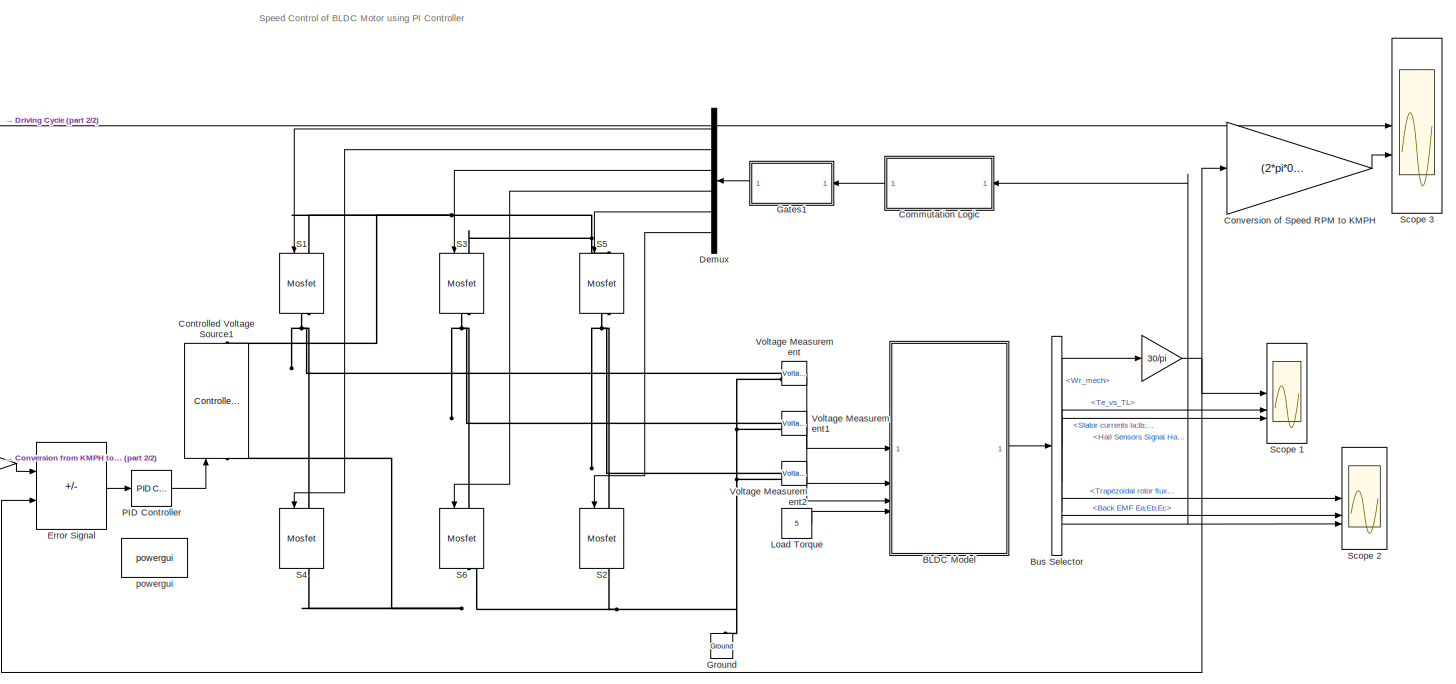
[diagram: root canvas - part 1/2, most of the canvas]
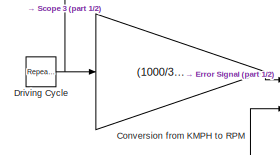
[diagram: root canvas - part 2/2, bottom left region]
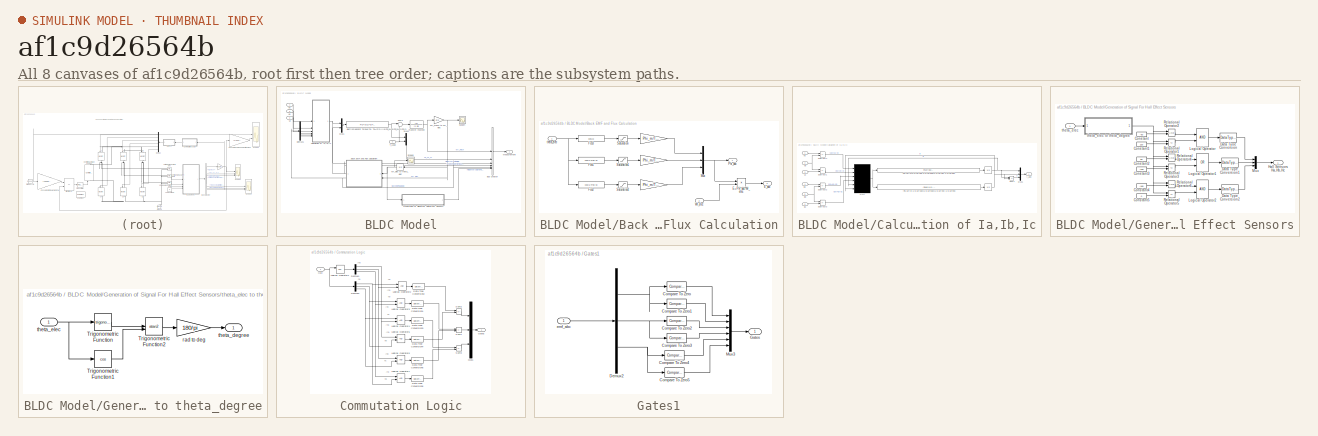
[diagram: thumbnail index - all 8 canvases of the model, root first then tree order]
MODEL slx_af1c9d26564b
KIND model
CONFIG AbsTol = auto
CONFIG EnableMultiTasking = off
CONFIG FixedStep = auto
CONFIG MaxStep = auto
CONFIG MinStep = auto
CONFIG RelTol = 1e-3
CONFIG SampleTimeConstraint = Unconstrained
CONFIG SolverName = VariableStepAuto
CONFIG StartTime = 0.0
CONFIG StopTime = 14
BLOCK [Gain]  
  Gain = 30/pi
  OutDataTypeStr = Inherit: Same as input
  ParamDataTypeStr = Inherit: Same as input
  SaturateOnIntegerOverflow = on
BLOCK [SubSystem] BLDC Model
BLOCK [SubSystem] BLDC Model/Back EMF and Flux Calculation
  NameLocation = top
BLOCK [Gain] BLDC Model/Back EMF and Flux Calculation/ 
  Gain = Phi_m/Trap
BLOCK [Product] BLDC Model/Back EMF and Flux Calculation/E=Phi_abc*Wr_elec
BLOCK [Outport] BLDC Model/Back EMF and Flux Calculation/E_abc
  Port = 2
BLOCK [Fcn] BLDC Model/Back EMF and Flux Calculation/Fcn1
  Expr = cos(u-2*pi/3)
BLOCK [Fcn] BLDC Model/Back EMF and Flux Calculation/Fcn2
  Expr = cos(u-4*pi/3)
BLOCK [Fcn] BLDC Model/Back EMF and Flux Calculation/Fcn3
  Expr = cos(u)
BLOCK [Mux] BLDC Model/Back EMF and Flux Calculation/Mux
  DisplayOption = bar
  Inputs = 3
BLOCK [Outport] BLDC Model/Back EMF and Flux Calculation/Phi_abc
BLOCK [Saturate] BLDC Model/Back EMF and Flux Calculation/Saturation
  LowerLimit = -Trap
  UpperLimit = Trap
BLOCK [Saturate] BLDC Model/Back EMF and Flux Calculation/Saturation1
  LowerLimit = -Trap
  UpperLimit = Trap
BLOCK [Saturate] BLDC Model/Back EMF and Flux Calculation/Saturation2
  LowerLimit = -Trap
  UpperLimit = Trap
BLOCK [Inport] BLDC Model/Back EMF and Flux Calculation/Wr_elec
  Port = 2
BLOCK [Inport] BLDC Model/Back EMF and Flux Calculation/theta_elec
BLOCK [BusCreator] BLDC Model/Bus Creator
  DisplayOption = bar
  InheritFromInputs = on
  Inputs = 6
BLOCK [SubSystem] BLDC Model/Calculation of Ia,Ib,Ic
BLOCK [Integrator] BLDC Model/Calculation of Ia,Ib,Ic/ 
BLOCK [Fcn] BLDC Model/Calculation of Ia,Ib,Ic/-Rs//Lls*Ia+2//3//Lls*Vab-2//3//Lls*eab+1//3//Lls*Vbc-1//3//Lls*ebc
  Expr = -Rs/Lls*u(5)+2/3/Lls*u(1)-2/3/Lls*u(3)+1/3/Lls*u(2)-1/3/Lls*u(4)
BLOCK [Fcn] BLDC Model/Calculation of Ia,Ib,Ic/-Rs//Lls*Ib-1//3//Lls*Vab+1//3//Lls*eab+1//3//Lls*Vbc-1//3//Lls*ebc
  Expr = -Rs/Lls*u(6)-1/3/Lls*u(1)+1/3/Lls*u(3)+1/3/Lls*u(2)-1/3/Lls*u(4)
BLOCK [Inport] BLDC Model/Calculation of Ia,Ib,Ic/Ea
  Port = 4
BLOCK [Inport] BLDC Model/Calculation of Ia,Ib,Ic/Eb
  Port = 5
BLOCK [Inport] BLDC Model/Calculation of Ia,Ib,Ic/Ec
  Port = 6
BLOCK [Outport] BLDC Model/Calculation of Ia,Ib,Ic/I_abc
BLOCK [Mux] BLDC Model/Calculation of Ia,Ib,Ic/Mux1
  DisplayOption = bar
  Inputs = 3
BLOCK [Mux] BLDC Model/Calculation of Ia,Ib,Ic/Mux2
  DisplayOption = signals
  Inputs = 6
BLOCK [Sum] BLDC Model/Calculation of Ia,Ib,Ic/Subtract1
  IconShape = rectangular
  Inputs = +-
BLOCK [Sum] BLDC Model/Calculation of Ia,Ib,Ic/Subtract2
  IconShape = rectangular
  Inputs = +-
BLOCK [Sum] BLDC Model/Calculation of Ia,Ib,Ic/Subtract3
  IconShape = rectangular
  Inputs = +-
BLOCK [Sum] BLDC Model/Calculation of Ia,Ib,Ic/Subtract4
  IconShape = rectangular
  Inputs = +-
BLOCK [Sum] BLDC Model/Calculation of Ia,Ib,Ic/Sum1
  IconShape = rectangular
  Inputs = --
  SaturateOnIntegerOverflow = on
BLOCK [Inport] BLDC Model/Calculation of Ia,Ib,Ic/Va
BLOCK [Inport] BLDC Model/Calculation of Ia,Ib,Ic/Vb
  Port = 2
BLOCK [Inport] BLDC Model/Calculation of Ia,Ib,Ic/Vc
  Port = 3
BLOCK [Demux] BLDC Model/Demux1
  Outputs = 3
BLOCK [Fcn] BLDC Model/Electromagnetic Torque(Te) Te=(P//2)*(Ia*Phi_a+Ib*Phi_b+Ic*Phi_c)
  Expr = P/2*(u[1]*u[4]+u[2]*u[5]+u[3]*u[6])
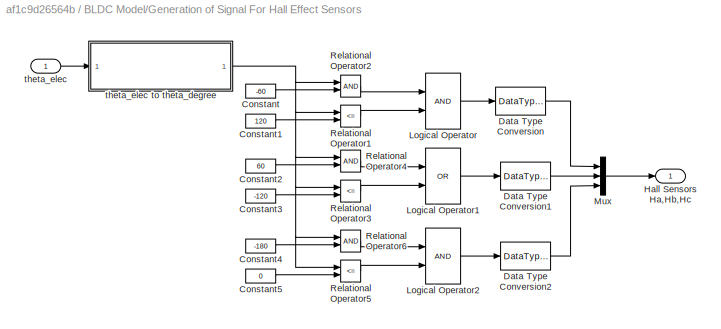
BLOCK [SubSystem] BLDC Model/Generation of Signal For Hall Effect Sensors
BLOCK [Constant] BLDC Model/Generation of Signal For Hall Effect Sensors/Constant
  Value = -60
BLOCK [Constant] BLDC Model/Generation of Signal For Hall Effect Sensors/Constant1
  Value = 120
BLOCK [Constant] BLDC Model/Generation of Signal For Hall Effect Sensors/Constant2
  Value = 60
BLOCK [Constant] BLDC Model/Generation of Signal For Hall Effect Sensors/Constant3
  Value = -120
BLOCK [Constant] BLDC Model/Generation of Signal For Hall Effect Sensors/Constant4
  Value = -180
BLOCK [Constant] BLDC Model/Generation of Signal For Hall Effect Sensors/Constant5
  Value = 0
BLOCK [DataTypeConversion] BLDC Model/Generation of Signal For Hall Effect Sensors/Data Type Conversion
  NameLocation = top
  OutDataTypeStr = double
BLOCK [DataTypeConversion] BLDC Model/Generation of Signal For Hall Effect Sensors/Data Type Conversion1
  NameLocation = top
  OutDataTypeStr = double
BLOCK [DataTypeConversion] BLDC Model/Generation of Signal For Hall Effect Sensors/Data Type Conversion2
  NameLocation = top
  OutDataTypeStr = double
BLOCK [Outport] BLDC Model/Generation of Signal For Hall Effect Sensors/Hall Sensors Ha,Hb,Hc
BLOCK [Logic] BLDC Model/Generation of Signal For Hall Effect Sensors/Logical Operator
  AllPortsSameDT = off
  OutDataTypeStr = boolean
BLOCK [Logic] BLDC Model/Generation of Signal For Hall Effect Sensors/Logical Operator1
  AllPortsSameDT = off
  Operator = OR
  OutDataTypeStr = boolean
BLOCK [Logic] BLDC Model/Generation of Signal For Hall Effect Sensors/Logical Operator2
  AllPortsSameDT = off
  OutDataTypeStr = boolean
BLOCK [Mux] BLDC Model/Generation of Signal For Hall Effect Sensors/Mux
  DisplayOption = bar
  Inputs = 3
BLOCK [RelationalOperator] BLDC Model/Generation of Signal For Hall Effect Sensors/Relational Operator1
  Operator = <=
BLOCK [RelationalOperator] BLDC Model/Generation of Signal For Hall Effect Sensors/Relational Operator2
BLOCK [RelationalOperator] BLDC Model/Generation of Signal For Hall Effect Sensors/Relational Operator3
  Operator = <=
BLOCK [RelationalOperator] BLDC Model/Generation of Signal For Hall Effect Sensors/Relational Operator4
BLOCK [RelationalOperator] BLDC Model/Generation of Signal For Hall Effect Sensors/Relational Operator5
  Operator = <=
BLOCK [RelationalOperator] BLDC Model/Generation of Signal For Hall Effect Sensors/Relational Operator6
BLOCK [Inport] BLDC Model/Generation of Signal For Hall Effect Sensors/theta_elec
  NameLocation = top
BLOCK [SubSystem] BLDC Model/Generation of Signal For Hall Effect Sensors/theta_elec to theta_degree
BLOCK [Trigonometry] BLDC Model/Generation of Signal For Hall Effect Sensors/theta_elec to theta_degree/Trigonometric Function
BLOCK [Trigonometry] BLDC Model/Generation of Signal For Hall Effect Sensors/theta_elec to theta_degree/Trigonometric Function1
  Operator = cos
BLOCK [Trigonometry] BLDC Model/Generation of Signal For Hall Effect Sensors/theta_elec to theta_degree/Trigonometric Function2
  Operator = atan2
BLOCK [Gain] BLDC Model/Generation of Signal For Hall Effect Sensors/theta_elec to theta_degree/rad to deg
  Gain = 180/pi
  OutDataTypeStr = Inherit: Same as input
  ParamDataTypeStr = Inherit: Same as input
  SaturateOnIntegerOverflow = on
BLOCK [Outport] BLDC Model/Generation of Signal For Hall Effect Sensors/theta_elec to theta_degree/theta_degree
BLOCK [Inport] BLDC Model/Generation of Signal For Hall Effect Sensors/theta_elec to theta_degree/theta_elec
BLOCK [Outport] BLDC Model/Measurement
BLOCK [Mux] BLDC Model/Mux1
  DisplayOption = bar
  Inputs = 2
BLOCK [Mux] BLDC Model/Mux2
  DisplayOption = bar
  Inputs = 2
BLOCK [Scope] BLDC Model/Scope4
  Floating = off
  NumInputPorts = 1
  ScopeSpecificationString = C++SS(StrPVP('Location','[692, 56, 1359, 759]'),StrPVP('Open','off'),StrPVP('ZoomMode','yonly'),MxPVP('AxesTitles',54,'struct(''axes1'',''%<SignalLabel>'')'),MxPVP('ScopeGraphics',57,'struct(''FigureColor'',''[0.5 0.5 0.5]'',''AxesColor'',''[0 0 0]'',''AxesTickColor'',''[1 1 1]'',''LineColors'',''[1 1 0;1 0 1;0 1 1;1 0 0;0 1 0;0 0 1]'',''LineStyles'',''-|-|-|-|-|-'',''LineWidths'',''[0.5 0.5 0.5 0...<+364ch>
BLOCK [Scope] BLDC Model/Scope5
  Floating = off
  NumInputPorts = 1
  ScopeSpecificationString = Simulink.scopes.TimeScopeBlockCfg('CurrentConfiguration', extmgr.ConfigurationSet(extmgr.Configuration('Core','General UI',true),extmgr.Configuration('Core','Source UI',true),extmgr.Configuration('Sources','WiredSimulink',true,'DataLoggingVariableName','ScopeData6','DataLoggingSaveFormat','StructureWithTime','DataLoggingDecimation','1','DataLoggingDecimateData',true),extmgr.Configuration('Visuals'...<+1751ch>
BLOCK [Sum] BLDC Model/Sum2
  Inputs = |+-
BLOCK [Inport] BLDC Model/T_Load
  Port = 4
BLOCK [TransferFcn] BLDC Model/Transfer Function
  Denominator = [J B]
BLOCK [Inport] BLDC Model/Va
BLOCK [Inport] BLDC Model/Vb
  Port = 2
BLOCK [Inport] BLDC Model/Vc
  Port = 3
BLOCK [Integrator] BLDC Model/Wr_elec to theta_elec
BLOCK [Gain] BLDC Model/Wr_mech to Wr_elec
  Gain = P/2
BLOCK [BusSelector] Bus Selector
  OutputSignals = Wr_mech,Te_vs_TL,Stator currents\nIa;Ib;Ic,Trapezoidal rotor fluxes\nPhi_a;Phi_b;Phi_c,Back EMF\nEa;Eb;Ec,Hall Sensors Signal\nHa;Hb;Hc
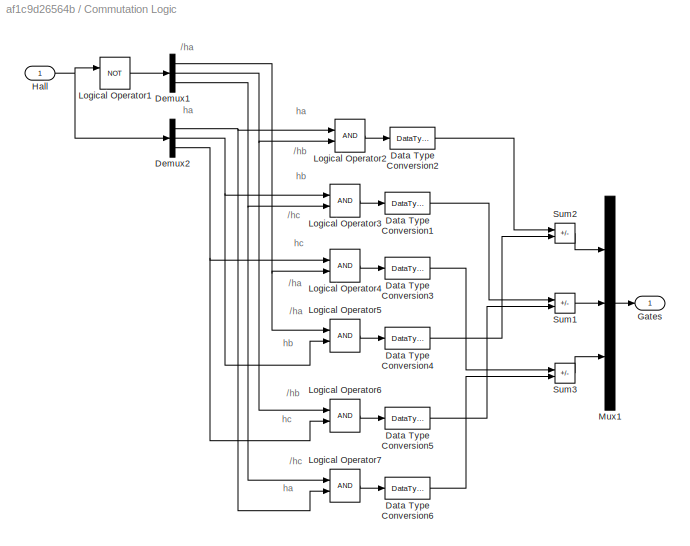
BLOCK [SubSystem] Commutation Logic
BLOCK [DataTypeConversion] Commutation Logic/Data Type Conversion1
  RndMeth = Floor
  SaturateOnIntegerOverflow = off
BLOCK [DataTypeConversion] Commutation Logic/Data Type Conversion2
  RndMeth = Floor
  SaturateOnIntegerOverflow = off
BLOCK [DataTypeConversion] Commutation Logic/Data Type Conversion3
  RndMeth = Floor
  SaturateOnIntegerOverflow = off
BLOCK [DataTypeConversion] Commutation Logic/Data Type Conversion4
  RndMeth = Floor
  SaturateOnIntegerOverflow = off
BLOCK [DataTypeConversion] Commutation Logic/Data Type Conversion5
  RndMeth = Floor
  SaturateOnIntegerOverflow = off
BLOCK [DataTypeConversion] Commutation Logic/Data Type Conversion6
  RndMeth = Floor
  SaturateOnIntegerOverflow = off
BLOCK [Demux] Commutation Logic/Demux1
  Outputs = 3
BLOCK [Demux] Commutation Logic/Demux2
  Outputs = 3
BLOCK [Outport] Commutation Logic/Gates
BLOCK [Inport] Commutation Logic/Hall 
BLOCK [Logic] Commutation Logic/Logical Operator1
  AllPortsSameDT = off
  Operator = NOT
  OutDataTypeStr = boolean
BLOCK [Logic] Commutation Logic/Logical Operator2
  AllPortsSameDT = off
  OutDataTypeStr = boolean
BLOCK [Logic] Commutation Logic/Logical Operator3
  AllPortsSameDT = off
  OutDataTypeStr = boolean
BLOCK [Logic] Commutation Logic/Logical Operator4
  AllPortsSameDT = off
  OutDataTypeStr = boolean
BLOCK [Logic] Commutation Logic/Logical Operator5
  AllPortsSameDT = off
  OutDataTypeStr = boolean
BLOCK [Logic] Commutation Logic/Logical Operator6
  AllPortsSameDT = off
  OutDataTypeStr = boolean
BLOCK [Logic] Commutation Logic/Logical Operator7
  AllPortsSameDT = off
  OutDataTypeStr = boolean
BLOCK [Mux] Commutation Logic/Mux1
  DisplayOption = bar
  Inputs = 3
BLOCK [Sum] Commutation Logic/Sum1
  IconShape = rectangular
  Inputs = +-
  OutDataTypeStr = double
BLOCK [Sum] Commutation Logic/Sum2
  IconShape = rectangular
  Inputs = +-
  OutDataTypeStr = double
BLOCK [Sum] Commutation Logic/Sum3
  IconShape = rectangular
  Inputs = +-
  OutDataTypeStr = double
BLOCK [Reference] Controlled Voltage Source1  REF=spsControlledVoltageSourceLib/Controlled Voltage Source
  LibrarySourceBlock = sps_lib/Sources/Controlled Voltage Source
  NameLocation = right
  SourceBlock = spsControlledVoltageSourceLib/Controlled Voltage Source
  SourceType = Controlled Voltage Source
BLOCK [Gain] Conversion from KMPH to RPM 
  Gain = (1000/3600)*60/(2*pi*0.3)
BLOCK [Gain] Conversion of Speed RPM to KMPH
  Gain = (2*pi*0.3*3600)/(60*1000)
  OutDataTypeStr = Inherit: Same as input
  ParamDataTypeStr = Inherit: Same as input
  SaturateOnIntegerOverflow = on
BLOCK [Demux] Demux
  NameLocation = top
  Outputs = 6
BLOCK [Reference] Driving Cycle  REF=simulink/Sources/Repeating
Sequence
  SourceBlock = simulink/Sources/Repeating\nSequence
  SourceType = Repeating table
BLOCK [Sum] Error Signal
  IconShape = rectangular
  Inputs = +-
BLOCK [SubSystem] Gates1
  NameLocation = top
BLOCK [Reference] Gates1/Compare To Zero  REF=simulink/Logic and Bit
Operations/Compare
To Zero
  SourceBlock = simulink/Logic and Bit\nOperations/Compare\nTo Zero
  SourceType = Compare To Zero
BLOCK [Reference] Gates1/Compare To Zero1  REF=simulink/Logic and Bit
Operations/Compare
To Zero
  SourceBlock = simulink/Logic and Bit\nOperations/Compare\nTo Zero
  SourceType = Compare To Zero
BLOCK [Reference] Gates1/Compare To Zero2  REF=simulink/Logic and Bit
Operations/Compare
To Zero
  SourceBlock = simulink/Logic and Bit\nOperations/Compare\nTo Zero
  SourceType = Compare To Zero
BLOCK [Reference] Gates1/Compare To Zero3  REF=simulink/Logic and Bit
Operations/Compare
To Zero
  SourceBlock = simulink/Logic and Bit\nOperations/Compare\nTo Zero
  SourceType = Compare To Zero
BLOCK [Reference] Gates1/Compare To Zero4  REF=simulink/Logic and Bit
Operations/Compare
To Zero
  SourceBlock = simulink/Logic and Bit\nOperations/Compare\nTo Zero
  SourceType = Compare To Zero
BLOCK [Reference] Gates1/Compare To Zero5  REF=simulink/Logic and Bit
Operations/Compare
To Zero
  SourceBlock = simulink/Logic and Bit\nOperations/Compare\nTo Zero
  SourceType = Compare To Zero
BLOCK [Demux] Gates1/Demux2
  Outputs = 3
BLOCK [Outport] Gates1/Gates
BLOCK [Mux] Gates1/Mux3
  DisplayOption = bar
  Inputs = 6
BLOCK [Inport] Gates1/emf_abc 
BLOCK [Reference] Ground  REF=spsGroundLib/Ground
  LibrarySourceBlock = sps_lib/Utilities/Ground
  NameLocation = right
  SourceBlock = spsGroundLib/Ground
  SourceType = Ground
BLOCK [Constant] Load Torque
  Value = 5
BLOCK [Reference] PID Controller  REF=slpidlib/PID Controller
  SourceBlock = slpidlib/PID Controller
  SourceType = PID 1dof
BLOCK [Reference] S1  REF=spsMosfetLib/Mosfet
  LibrarySourceBlock = sps_lib/Power Electronics/Mosfet
  NameLocation = left
  SourceBlock = spsMosfetLib/Mosfet
  SourceType = Mosfet
BLOCK [Reference] S2  REF=spsMosfetLib/Mosfet
  LibrarySourceBlock = sps_lib/Power Electronics/Mosfet
  NameLocation = left
  SourceBlock = spsMosfetLib/Mosfet
  SourceType = Mosfet
BLOCK [Reference] S3  REF=spsMosfetLib/Mosfet
  LibrarySourceBlock = sps_lib/Power Electronics/Mosfet
  NameLocation = left
  SourceBlock = spsMosfetLib/Mosfet
  SourceType = Mosfet
BLOCK [Reference] S4  REF=spsMosfetLib/Mosfet
  LibrarySourceBlock = sps_lib/Power Electronics/Mosfet
  NameLocation = left
  SourceBlock = spsMosfetLib/Mosfet
  SourceType = Mosfet
BLOCK [Reference] S5  REF=spsMosfetLib/Mosfet
  LibrarySourceBlock = sps_lib/Power Electronics/Mosfet
  NameLocation = left
  SourceBlock = spsMosfetLib/Mosfet
  SourceType = Mosfet
BLOCK [Reference] S6  REF=spsMosfetLib/Mosfet
  LibrarySourceBlock = sps_lib/Power Electronics/Mosfet
  NameLocation = left
  SourceBlock = spsMosfetLib/Mosfet
  SourceType = Mosfet
BLOCK [Scope] Scope 1
  Floating = off
  NumInputPorts = 3
  ScopeSpecificationString = Simulink.scopes.TimeScopeBlockCfg('CurrentConfiguration', extmgr.ConfigurationSet(extmgr.Configuration('Core','General UI',true,'FigureColor',[0.905882352941176 0.905882352941176 0.905882352941176]),extmgr.Configuration('Core','Source UI',true),extmgr.Configuration('Sources','WiredSimulink',true,'DataLoggingSaveFormat','StructureWithTime','DataLoggingDecimation','1','DataLoggingDecimateData',true,...<+3972ch>
BLOCK [Scope] Scope 2
  Floating = off
  NumInputPorts = 3
  ScopeSpecificationString = Simulink.scopes.TimeScopeBlockCfg('CurrentConfiguration', extmgr.ConfigurationSet(extmgr.Configuration('Core','General UI',true,'FigureColor',[0.905882352941176 0.905882352941176 0.905882352941176]),extmgr.Configuration('Core','Source UI',true),extmgr.Configuration('Sources','WiredSimulink',true,'DataLoggingVariableName','ScopeData3','DataLoggingSaveFormat','StructureWithTime','DataLoggingDecimati...<+4498ch>
BLOCK [Scope] Scope 3
  Floating = off
  NumInputPorts = 2
  ScopeSpecificationString = Simulink.scopes.TimeScopeBlockCfg('CurrentConfiguration', extmgr.ConfigurationSet(extmgr.Configuration('Core','General UI',true,'FigureColor',[1 1 1]),extmgr.Configuration('Core','Source UI',true),extmgr.Configuration('Sources','WiredSimulink',true,'DataLoggingSaveFormat','StructureWithTime','DataLoggingDecimation','1','DataLoggingDecimateData',true,'DataLoggingVariableName','ScopeData1'),extmgr.C...<+2659ch>
BLOCK [Reference] Voltage Measurement  REF=spsVoltageMeasurementLib/Voltage Measurement
  LibrarySourceBlock = sps_lib/Sensors and Measurements/Voltage Measurement
  SourceBlock = spsVoltageMeasurementLib/Voltage Measurement
  SourceType = Voltage Measurement
  UserDataPersistent = on
BLOCK [Reference] Voltage Measurement1  REF=spsVoltageMeasurementLib/Voltage Measurement
  LibrarySourceBlock = sps_lib/Sensors and Measurements/Voltage Measurement
  SourceBlock = spsVoltageMeasurementLib/Voltage Measurement
  SourceType = Voltage Measurement
  UserDataPersistent = on
BLOCK [Reference] Voltage Measurement2  REF=spsVoltageMeasurementLib/Voltage Measurement
  LibrarySourceBlock = sps_lib/Sensors and Measurements/Voltage Measurement
  SourceBlock = spsVoltageMeasurementLib/Voltage Measurement
  SourceType = Voltage Measurement
  UserDataPersistent = on
BLOCK [Reference] powergui  REF=sps_lib/powergui
  LibrarySourceBlock = sps_lib/powergui
  Priority = 1
  SourceBlock = sps_lib/powergui
  SourceType = PSB option menu block
ANNOTATION (root): Speed Control of BLDC Motor using PI Controller
ANNOTATION Commutation Logic: /ha
ANNOTATION Commutation Logic: /hb
ANNOTATION Commutation Logic: /hc
ANNOTATION Commutation Logic: ha
ANNOTATION Commutation Logic: hb
ANNOTATION Commutation Logic: hc
NET  :1 -> Conversion of Speed RPM to KMPH:1, Error Signal:2, Scope 1:1
NET BLDC Model/Back EMF and Flux Calculation/ :1 -> BLDC Model/Back EMF and Flux Calculation/Mux:1, BLDC Model/Back EMF and Flux Calculation/Mux:2, BLDC Model/Back EMF and Flux Calculation/Mux:3
LINE BLDC Model/Back EMF and Flux Calculation/E=Phi_abc*Wr_elec:1 -> BLDC Model/Back EMF and Flux Calculation/E_abc:1
LINE BLDC Model/Back EMF and Flux Calculation/Fcn1:1 -> BLDC Model/Back EMF and Flux Calculation/Saturation1:1
LINE BLDC Model/Back EMF and Flux Calculation/Fcn2:1 -> BLDC Model/Back EMF and Flux Calculation/Saturation2:1
LINE BLDC Model/Back EMF and Flux Calculation/Fcn3:1 -> BLDC Model/Back EMF and Flux Calculation/Saturation:1
NET BLDC Model/Back EMF and Flux Calculation/Mux:1 -> BLDC Model/Back EMF and Flux Calculation/E=Phi_abc*Wr_elec:1, BLDC Model/Back EMF and Flux Calculation/Phi_abc:1
LINE BLDC Model/Back EMF and Flux Calculation/Saturation1:1 -> BLDC Model/Back EMF and Flux Calculation/ :1
LINE BLDC Model/Back EMF and Flux Calculation/Saturation2:1 -> BLDC Model/Back EMF and Flux Calculation/ :1
LINE BLDC Model/Back EMF and Flux Calculation/Saturation:1 -> BLDC Model/Back EMF and Flux Calculation/ :1
LINE BLDC Model/Back EMF and Flux Calculation/Wr_elec:1 -> BLDC Model/Back EMF and Flux Calculation/E=Phi_abc*Wr_elec:2
NET BLDC Model/Back EMF and Flux Calculation/theta_elec:1 -> BLDC Model/Back EMF and Flux Calculation/Fcn1:1, BLDC Model/Back EMF and Flux Calculation/Fcn2:1, BLDC Model/Back EMF and Flux Calculation/Fcn3:1
NET BLDC Model/Back EMF and Flux Calculation:1 -> BLDC Model/Bus Creator:4, BLDC Model/Mux1:2
NET BLDC Model/Back EMF and Flux Calculation:2 -> BLDC Model/Bus Creator:5, BLDC Model/Demux1:1
LINE BLDC Model/Bus Creator:1 -> BLDC Model/Measurement:1
NET BLDC Model/Calculation of Ia,Ib,Ic/ :1 -> BLDC Model/Calculation of Ia,Ib,Ic/Mux1:1, BLDC Model/Calculation of Ia,Ib,Ic/Mux1:2, BLDC Model/Calculation of Ia,Ib,Ic/Mux2:5, BLDC Model/Calculation of Ia,Ib,Ic/Mux2:6, BLDC Model/Calculation of Ia,Ib,Ic/Sum1:1, BLDC Model/Calculation of Ia,Ib,Ic/Sum1:2
LINE BLDC Model/Calculation of Ia,Ib,Ic/-Rs//Lls*Ia+2//3//Lls*Vab-2//3//Lls*eab+1//3//Lls*Vbc-1//3//Lls*ebc:1 -> BLDC Model/Calculation of Ia,Ib,Ic/ :1
LINE BLDC Model/Calculation of Ia,Ib,Ic/-Rs//Lls*Ib-1//3//Lls*Vab+1//3//Lls*eab+1//3//Lls*Vbc-1//3//Lls*ebc:1 -> BLDC Model/Calculation of Ia,Ib,Ic/ :1
LINE BLDC Model/Calculation of Ia,Ib,Ic/Ea:1 -> BLDC Model/Calculation of Ia,Ib,Ic/Subtract2:1
NET BLDC Model/Calculation of Ia,Ib,Ic/Eb:1 -> BLDC Model/Calculation of Ia,Ib,Ic/Subtract2:2, BLDC Model/Calculation of Ia,Ib,Ic/Subtract3:1
LINE BLDC Model/Calculation of Ia,Ib,Ic/Ec:1 -> BLDC Model/Calculation of Ia,Ib,Ic/Subtract3:2
LINE BLDC Model/Calculation of Ia,Ib,Ic/Mux1:1 -> BLDC Model/Calculation of Ia,Ib,Ic/I_abc:1
NET BLDC Model/Calculation of Ia,Ib,Ic/Mux2:1 -> BLDC Model/Calculation of Ia,Ib,Ic/-Rs//Lls*Ia+2//3//Lls*Vab-2//3//Lls*eab+1//3//Lls*Vbc-1//3//Lls*ebc:1, BLDC Model/Calculation of Ia,Ib,Ic/-Rs//Lls*Ib-1//3//Lls*Vab+1//3//Lls*eab+1//3//Lls*Vbc-1//3//Lls*ebc:1
LINE BLDC Model/Calculation of Ia,Ib,Ic/Subtract1:1 -> BLDC Model/Calculation of Ia,Ib,Ic/Mux2:2
LINE BLDC Model/Calculation of Ia,Ib,Ic/Subtract2:1 -> BLDC Model/Calculation of Ia,Ib,Ic/Mux2:3
LINE BLDC Model/Calculation of Ia,Ib,Ic/Subtract3:1 -> BLDC Model/Calculation of Ia,Ib,Ic/Mux2:4
LINE BLDC Model/Calculation of Ia,Ib,Ic/Subtract4:1 -> BLDC Model/Calculation of Ia,Ib,Ic/Mux2:1
LINE BLDC Model/Calculation of Ia,Ib,Ic/Sum1:1 -> BLDC Model/Calculation of Ia,Ib,Ic/Mux1:3
LINE BLDC Model/Calculation of Ia,Ib,Ic/Va:1 -> BLDC Model/Calculation of Ia,Ib,Ic/Subtract4:1
NET BLDC Model/Calculation of Ia,Ib,Ic/Vb:1 -> BLDC Model/Calculation of Ia,Ib,Ic/Subtract1:1, BLDC Model/Calculation of Ia,Ib,Ic/Subtract4:2
LINE BLDC Model/Calculation of Ia,Ib,Ic/Vc:1 -> BLDC Model/Calculation of Ia,Ib,Ic/Subtract1:2
NET BLDC Model/Calculation of Ia,Ib,Ic:1 -> BLDC Model/Bus Creator:3, BLDC Model/Mux1:1
LINE BLDC Model/Demux1:1 -> BLDC Model/Calculation of Ia,Ib,Ic:4
LINE BLDC Model/Demux1:2 -> BLDC Model/Calculation of Ia,Ib,Ic:5
LINE BLDC Model/Demux1:3 -> BLDC Model/Calculation of Ia,Ib,Ic:6
NET BLDC Model/Electromagnetic Torque(Te) Te=(P//2)*(Ia*Phi_a+Ib*Phi_b+Ic*Phi_c):1 -> BLDC Model/Mux2:1, BLDC Model/Sum2:1
LINE BLDC Model/Generation of Signal For Hall Effect Sensors/Constant1:1 -> BLDC Model/Generation of Signal For Hall Effect Sensors/Relational Operator1:2
LINE BLDC Model/Generation of Signal For Hall Effect Sensors/Constant2:1 -> BLDC Model/Generation of Signal For Hall Effect Sensors/Relational Operator4:2
LINE BLDC Model/Generation of Signal For Hall Effect Sensors/Constant3:1 -> BLDC Model/Generation of Signal For Hall Effect Sensors/Relational Operator3:2
LINE BLDC Model/Generation of Signal For Hall Effect Sensors/Constant4:1 -> BLDC Model/Generation of Signal For Hall Effect Sensors/Relational Operator6:2
LINE BLDC Model/Generation of Signal For Hall Effect Sensors/Constant5:1 -> BLDC Model/Generation of Signal For Hall Effect Sensors/Relational Operator5:2
LINE BLDC Model/Generation of Signal For Hall Effect Sensors/Constant:1 -> BLDC Model/Generation of Signal For Hall Effect Sensors/Relational Operator2:2
LINE BLDC Model/Generation of Signal For Hall Effect Sensors/Data Type Conversion1:1 -> BLDC Model/Generation of Signal For Hall Effect Sensors/Mux:2
LINE BLDC Model/Generation of Signal For Hall Effect Sensors/Data Type Conversion2:1 -> BLDC Model/Generation of Signal For Hall Effect Sensors/Mux:3
LINE BLDC Model/Generation of Signal For Hall Effect Sensors/Data Type Conversion:1 -> BLDC Model/Generation of Signal For Hall Effect Sensors/Mux:1
LINE BLDC Model/Generation of Signal For Hall Effect Sensors/Logical Operator1:1 -> BLDC Model/Generation of Signal For Hall Effect Sensors/Data Type Conversion1:1
LINE BLDC Model/Generation of Signal For Hall Effect Sensors/Logical Operator2:1 -> BLDC Model/Generation of Signal For Hall Effect Sensors/Data Type Conversion2:1
LINE BLDC Model/Generation of Signal For Hall Effect Sensors/Logical Operator:1 -> BLDC Model/Generation of Signal For Hall Effect Sensors/Data Type Conversion:1
LINE BLDC Model/Generation of Signal For Hall Effect Sensors/Mux:1 -> BLDC Model/Generation of Signal For Hall Effect Sensors/Hall Sensors Ha,Hb,Hc:1
LINE BLDC Model/Generation of Signal For Hall Effect Sensors/Relational Operator1:1 -> BLDC Model/Generation of Signal For Hall Effect Sensors/Logical Operator:2
LINE BLDC Model/Generation of Signal For Hall Effect Sensors/Relational Operator2:1 -> BLDC Model/Generation of Signal For Hall Effect Sensors/Logical Operator:1
LINE BLDC Model/Generation of Signal For Hall Effect Sensors/Relational Operator3:1 -> BLDC Model/Generation of Signal For Hall Effect Sensors/Logical Operator1:2
LINE BLDC Model/Generation of Signal For Hall Effect Sensors/Relational Operator4:1 -> BLDC Model/Generation of Signal For Hall Effect Sensors/Logical Operator1:1
LINE BLDC Model/Generation of Signal For Hall Effect Sensors/Relational Operator5:1 -> BLDC Model/Generation of Signal For Hall Effect Sensors/Logical Operator2:2
LINE BLDC Model/Generation of Signal For Hall Effect Sensors/Relational Operator6:1 -> BLDC Model/Generation of Signal For Hall Effect Sensors/Logical Operator2:1
LINE BLDC Model/Generation of Signal For Hall Effect Sensors/theta_elec to theta_degree/Trigonometric Function1:1 -> BLDC Model/Generation of Signal For Hall Effect Sensors/theta_elec to theta_degree/Trigonometric Function2:2
LINE BLDC Model/Generation of Signal For Hall Effect Sensors/theta_elec to theta_degree/Trigonometric Function2:1 -> BLDC Model/Generation of Signal For Hall Effect Sensors/theta_elec to theta_degree/rad to deg:1
LINE BLDC Model/Generation of Signal For Hall Effect Sensors/theta_elec to theta_degree/Trigonometric Function:1 -> BLDC Model/Generation of Signal For Hall Effect Sensors/theta_elec to theta_degree/Trigonometric Function2:1
LINE BLDC Model/Generation of Signal For Hall Effect Sensors/theta_elec to theta_degree/rad to deg:1 -> BLDC Model/Generation of Signal For Hall Effect Sensors/theta_elec to theta_degree/theta_degree:1
NET BLDC Model/Generation of Signal For Hall Effect Sensors/theta_elec to theta_degree/theta_elec:1 -> BLDC Model/Generation of Signal For Hall Effect Sensors/theta_elec to theta_degree/Trigonometric Function1:1, BLDC Model/Generation of Signal For Hall Effect Sensors/theta_elec to theta_degree/Trigonometric Function:1
NET BLDC Model/Generation of Signal For Hall Effect Sensors/theta_elec to theta_degree:1 -> BLDC Model/Generation of Signal For Hall Effect Sensors/Relational Operator1:1, BLDC Model/Generation of Signal For Hall Effect Sensors/Relational Operator2:1, BLDC Model/Generation of Signal For Hall Effect Sensors/Relational Operator3:1, BLDC Model/Generation of Signal For Hall Effect Sensors/Relational Operator4:1, BLDC Model/Generation of Signal For Hall Effect Sensors/Relational Operator5:1, BLDC Model/Generation of Signal For Hall Effect Sensors/Relational Operator6:1
LINE BLDC Model/Generation of Signal For Hall Effect Sensors/theta_elec:1 -> BLDC Model/Generation of Signal For Hall Effect Sensors/theta_elec to theta_degree:1
LINE BLDC Model/Generation of Signal For Hall Effect Sensors:1 -> BLDC Model/Bus Creator:6
LINE BLDC Model/Mux1:1 -> BLDC Model/Electromagnetic Torque(Te) Te=(P//2)*(Ia*Phi_a+Ib*Phi_b+Ic*Phi_c):1
LINE BLDC Model/Mux2:1 -> BLDC Model/Bus Creator:2
LINE BLDC Model/Sum2:1 -> BLDC Model/Transfer Function:1
NET BLDC Model/T_Load:1 -> BLDC Model/Mux2:2, BLDC Model/Sum2:2
NET BLDC Model/Transfer Function:1 -> BLDC Model/Bus Creator:1, BLDC Model/Wr_mech to Wr_elec:1
LINE BLDC Model/Va:1 -> BLDC Model/Calculation of Ia,Ib,Ic:1
LINE BLDC Model/Vb:1 -> BLDC Model/Calculation of Ia,Ib,Ic:2
LINE BLDC Model/Vc:1 -> BLDC Model/Calculation of Ia,Ib,Ic:3
NET BLDC Model/Wr_elec to theta_elec:1 -> BLDC Model/Back EMF and Flux Calculation:1, BLDC Model/Generation of Signal For Hall Effect Sensors:1, BLDC Model/Scope5:1
NET BLDC Model/Wr_mech to Wr_elec:1 -> BLDC Model/Back EMF and Flux Calculation:2, BLDC Model/Scope4:1, BLDC Model/Wr_elec to theta_elec:1
LINE BLDC Model:1 -> Bus Selector:1
LINE Bus Selector:1 ->  :1
LINE Bus Selector:2 -> Scope 1:2
LINE Bus Selector:3 -> Scope 1:3
LINE Bus Selector:4 -> Scope 2:1
LINE Bus Selector:5 -> Scope 2:2
NET Bus Selector:6 -> Commutation Logic:1, Scope 2:3
LINE Commutation Logic/Data Type Conversion1:1 -> Commutation Logic/Sum1:1
LINE Commutation Logic/Data Type Conversion2:1 -> Commutation Logic/Sum2:1
LINE Commutation Logic/Data Type Conversion3:1 -> Commutation Logic/Sum3:1
LINE Commutation Logic/Data Type Conversion4:1 -> Commutation Logic/Sum2:2
LINE Commutation Logic/Data Type Conversion5:1 -> Commutation Logic/Sum1:2
LINE Commutation Logic/Data Type Conversion6:1 -> Commutation Logic/Sum3:2
NET Commutation Logic/Demux1:1 -> Commutation Logic/Logical Operator4:2, Commutation Logic/Logical Operator5:1
NET Commutation Logic/Demux1:2 -> Commutation Logic/Logical Operator2:2, Commutation Logic/Logical Operator6:1
NET Commutation Logic/Demux1:3 -> Commutation Logic/Logical Operator3:2, Commutation Logic/Logical Operator7:1
NET Commutation Logic/Demux2:1 -> Commutation Logic/Logical Operator2:1, Commutation Logic/Logical Operator7:2
NET Commutation Logic/Demux2:2 -> Commutation Logic/Logical Operator3:1, Commutation Logic/Logical Operator5:2
NET Commutation Logic/Demux2:3 -> Commutation Logic/Logical Operator4:1, Commutation Logic/Logical Operator6:2
NET Commutation Logic/Hall :1 -> Commutation Logic/Demux2:1, Commutation Logic/Logical Operator1:1
LINE Commutation Logic/Logical Operator1:1 -> Commutation Logic/Demux1:1
LINE Commutation Logic/Logical Operator2:1 -> Commutation Logic/Data Type Conversion2:1
LINE Commutation Logic/Logical Operator3:1 -> Commutation Logic/Data Type Conversion1:1
LINE Commutation Logic/Logical Operator4:1 -> Commutation Logic/Data Type Conversion3:1
LINE Commutation Logic/Logical Operator5:1 -> Commutation Logic/Data Type Conversion4:1
LINE Commutation Logic/Logical Operator6:1 -> Commutation Logic/Data Type Conversion5:1
LINE Commutation Logic/Logical Operator7:1 -> Commutation Logic/Data Type Conversion6:1
LINE Commutation Logic/Mux1:1 -> Commutation Logic/Gates:1
LINE Commutation Logic/Sum1:1 -> Commutation Logic/Mux1:2
LINE Commutation Logic/Sum2:1 -> Commutation Logic/Mux1:1
LINE Commutation Logic/Sum3:1 -> Commutation Logic/Mux1:3
LINE Commutation Logic:1 -> Gates1:1
LINE Conversion from KMPH to RPM :1 -> Error Signal:1
LINE Conversion of Speed RPM to KMPH:1 -> Scope 3:2
LINE Demux:1 -> S1:1
LINE Demux:2 -> S4:1
LINE Demux:3 -> S3:1
LINE Demux:4 -> S6:1
LINE Demux:5 -> S5:1
LINE Demux:6 -> S2:1
NET Driving Cycle:1 -> Conversion from KMPH to RPM :1, Scope 3:1
LINE Error Signal:1 -> PID Controller:1
LINE Gates1/Compare To Zero1:1 -> Gates1/Mux3:2
LINE Gates1/Compare To Zero2:1 -> Gates1/Mux3:3
LINE Gates1/Compare To Zero3:1 -> Gates1/Mux3:4
LINE Gates1/Compare To Zero4:1 -> Gates1/Mux3:5
LINE Gates1/Compare To Zero5:1 -> Gates1/Mux3:6
LINE Gates1/Compare To Zero:1 -> Gates1/Mux3:1
NET Gates1/Demux2:1 -> Gates1/Compare To Zero1:1, Gates1/Compare To Zero:1
NET Gates1/Demux2:2 -> Gates1/Compare To Zero2:1, Gates1/Compare To Zero3:1
NET Gates1/Demux2:3 -> Gates1/Compare To Zero4:1, Gates1/Compare To Zero5:1
LINE Gates1/Mux3:1 -> Gates1/Gates:1
LINE Gates1/emf_abc :1 -> Gates1/Demux2:1
LINE Gates1:1 -> Demux:1
LINE Load Torque:1 -> BLDC Model:4
LINE PID Controller:1 -> Controlled Voltage Source1:1
LINE Voltage Measurement1:1 -> BLDC Model:2
LINE Voltage Measurement2:1 -> BLDC Model:3
LINE Voltage Measurement:1 -> BLDC Model:1
PNET net1: Controlled Voltage Source1:LConn1 -- Ground:LConn1 -- S2:RConn1 -- S4:RConn1 -- S6:RConn1 -- Voltage Measurement1:LConn2 -- Voltage Measurement2:LConn2 -- Voltage Measurement:LConn2
PNET net2: Controlled Voltage Source1:RConn1 -- S1:LConn1 -- S3:LConn1 -- S5:LConn1
PNET net3: S1:RConn1 -- S4:LConn1 -- Voltage Measurement:LConn1
PNET net4: S2:LConn1 -- S5:RConn1 -- Voltage Measurement2:LConn1
PNET net5: S3:RConn1 -- S6:LConn1 -- Voltage Measurement1:LConn1
note: NET lines group one-source signal fan-out (src -> all destinations, sorted); 1:1 wires keep LINE; PNET lines group multi-terminal physical nets as a canonical sorted terminal list (undirected conserving connections); 2-terminal nets keep the pairwise PLINE form
